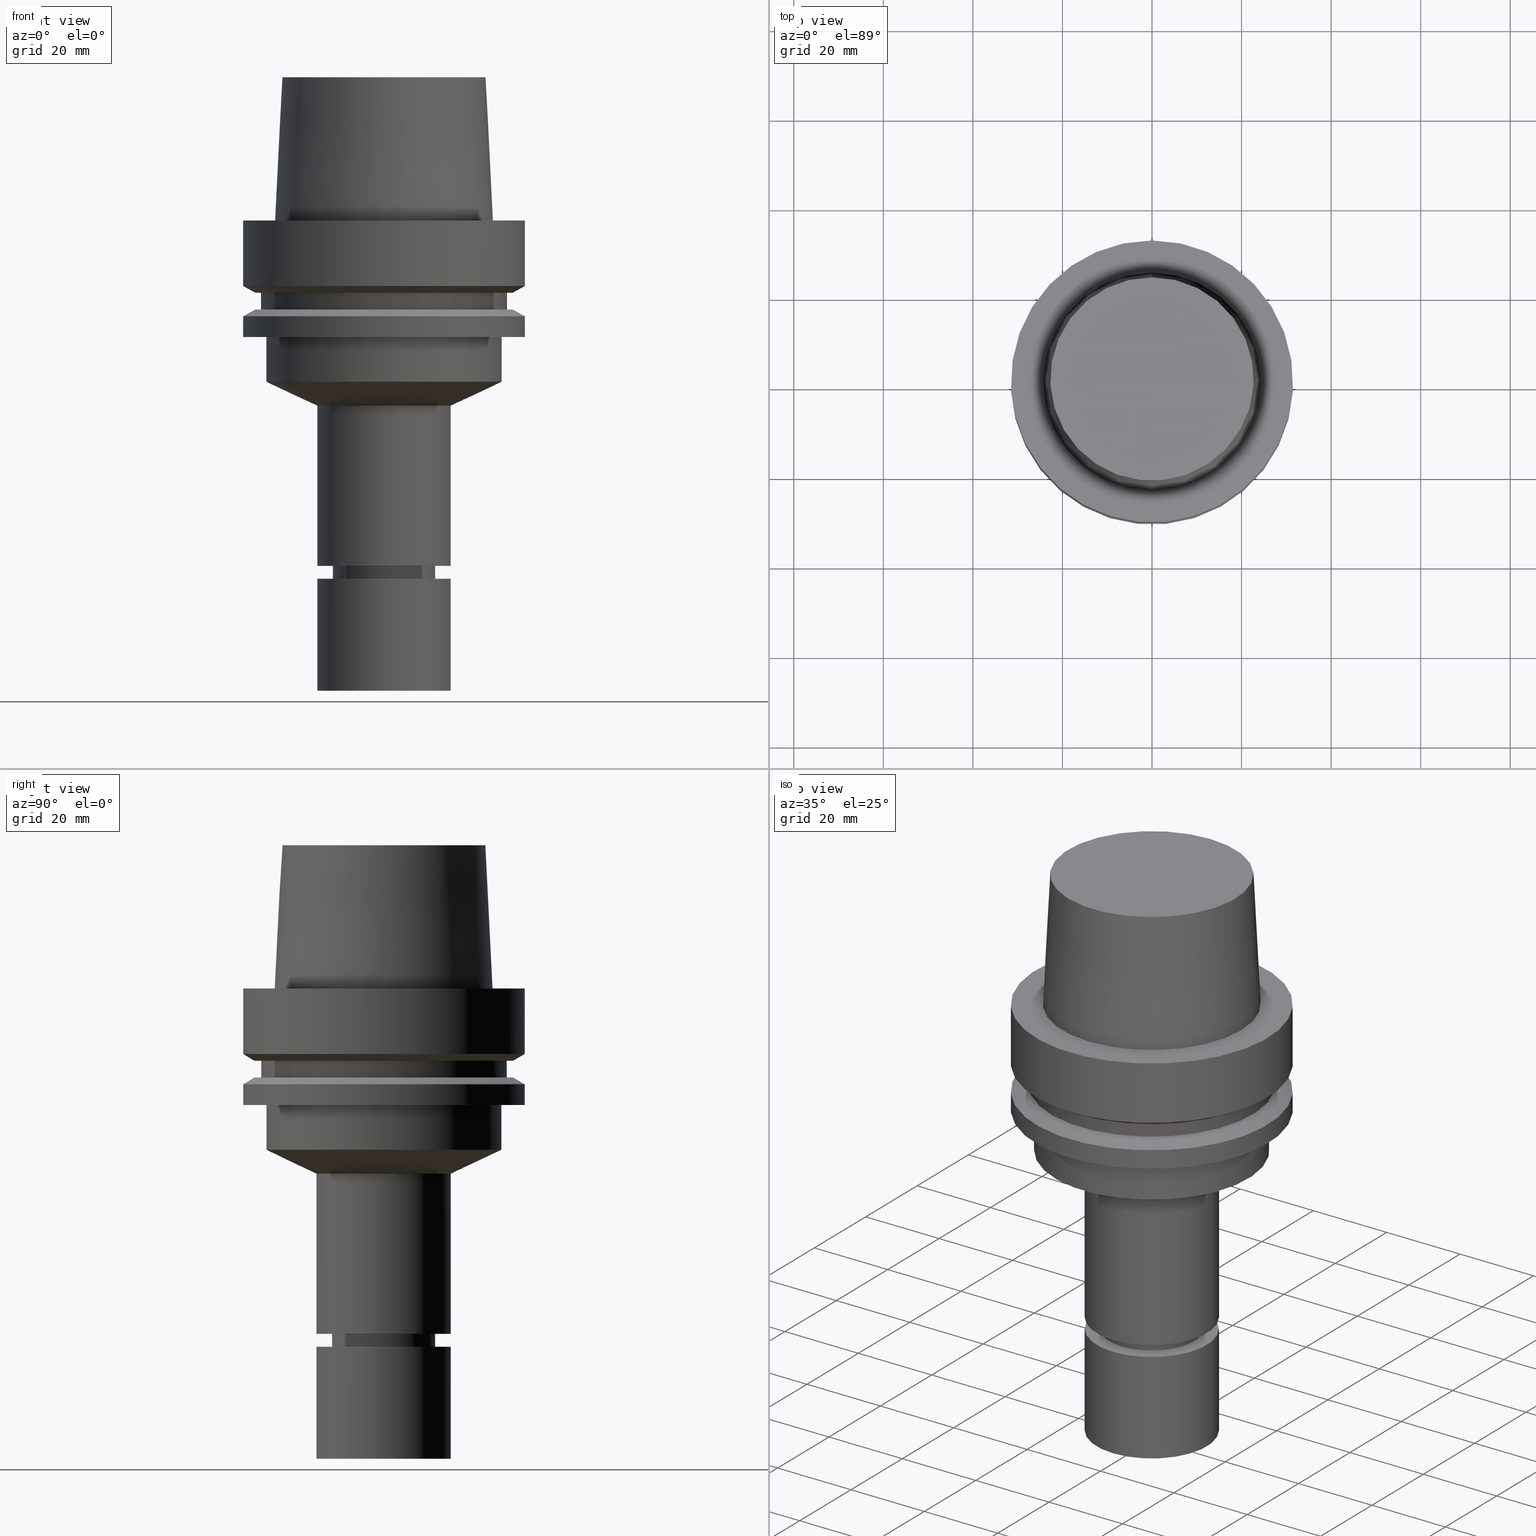
[diagram: canonical four-view strip — front | top / right | iso, engineering-drawing reading convention]
A machine part, canonical four-view strip (front | top / right | iso — engineering-drawing reading convention). The complete STEP part file that produces these views, byte-faithful:
ISO-10303-21;
HEADER;
FILE_DESCRIPTION((''),'1');
FILE_NAME('U:/Translate/02_3D_Field-HP\X2\FF71FF6FFF8CFF9F5916\X0\2013/02_Step_Field-HP\X2\FF71FF6FFF8CFF9F5916\X0\2013/HSK-A63-MEGAER16-105NL.stp','2016-06-21T23:56:23',(''),(''),'Spatial Interop R21 SP3','Kubotek KeyCreator 2011 V10.0.2 (22737)',' ');
FILE_SCHEMA(('automotive_design'));
ENDSEC;
DATA;
#1=MECHANICAL_DESIGN_GEOMETRIC_PRESENTATION_REPRESENTATION(' ',(#14,#15,#16,#17,#18,#19,#20,#21,#22,#23,#24,#25,#26,#27,#28,#29,#30,#31,#32,#33,#34,#35,#36,#37,#38,#39,#40,#41,#42,#43,#44,#45,#46,#47,#48,#49,#50,#51,#52,#53,#54,#55,#56,#57,#58,#59),#10);
#2=PRODUCT_DEFINITION_CONTEXT('',#60,'design');
#3=APPLICATION_PROTOCOL_DEFINITION('INTERNATIONAL STANDARD','automotive_design',1994,#60);
#4=PRODUCT_CATEGORY_RELATIONSHIP('NONE','NONE',#61,#62);
#5=SHAPE_DEFINITION_REPRESENTATION(#63,#64);
#6=PRODUCT_DEFINITION_CONTEXT('',#65,'design');
#7=APPLICATION_PROTOCOL_DEFINITION('INTERNATIONAL STANDARD','automotive_design',1994,#65);
#8=PRODUCT_CATEGORY_RELATIONSHIP('NONE','NONE',#66,#67);
#9=SHAPE_DEFINITION_REPRESENTATION(#68,#69);
#10= (GEOMETRIC_REPRESENTATION_CONTEXT(3)GLOBAL_UNCERTAINTY_ASSIGNED_CONTEXT((#72))GLOBAL_UNIT_ASSIGNED_CONTEXT((#74,#75,#76))REPRESENTATION_CONTEXT('NONE','WORKSPACE'));
#14=STYLED_ITEM('',(#78),#79);
#15=STYLED_ITEM('',(#80,#81),#82);
#16=STYLED_ITEM('',(#83),#84);
#17=STYLED_ITEM('',(#85),#86);
#18=STYLED_ITEM('',(#87),#88);
#19=STYLED_ITEM('',(#89,#90),#91);
#20=STYLED_ITEM('',(#92,#93),#94);
#21=STYLED_ITEM('',(#95),#96);
#22=STYLED_ITEM('',(#97),#98);
#23=STYLED_ITEM('',(#99),#100);
#24=STYLED_ITEM('',(#101,#102),#103);
#25=STYLED_ITEM('',(#104,#105),#106);
#26=STYLED_ITEM('',(#107),#108);
#27=STYLED_ITEM('',(#109,#110),#111);
#28=STYLED_ITEM('',(#112,#113),#114);
#29=STYLED_ITEM('',(#115),#116);
#30=STYLED_ITEM('',(#117),#118);
#31=STYLED_ITEM('',(#119),#120);
#32=STYLED_ITEM('',(#121),#122);
#33=STYLED_ITEM('',(#123,#124),#125);
#34=STYLED_ITEM('',(#126,#127),#128);
#35=STYLED_ITEM('',(#129,#130),#131);
#36=STYLED_ITEM('',(#132,#133),#134);
#37=STYLED_ITEM('',(#135,#136),#137);
#38=STYLED_ITEM('',(#138),#139);
#39=STYLED_ITEM('',(#140,#141),#142);
#40=STYLED_ITEM('',(#143),#144);
#41=STYLED_ITEM('',(#145),#146);
#42=STYLED_ITEM('',(#147),#148);
#43=STYLED_ITEM('',(#149),#150);
#44=STYLED_ITEM('',(#151,#152),#153);
#45=STYLED_ITEM('',(#154,#155),#156);
#46=STYLED_ITEM('',(#157,#158),#159);
#47=STYLED_ITEM('',(#160),#161);
#48=STYLED_ITEM('',(#162,#163),#164);
#49=STYLED_ITEM('',(#165,#166),#167);
#50=STYLED_ITEM('',(#168),#169);
#51=STYLED_ITEM('',(#170,#171),#172);
#52=STYLED_ITEM('',(#173,#174),#175);
#53=STYLED_ITEM('',(#176),#177);
#54=STYLED_ITEM('',(#178),#179);
#55=STYLED_ITEM('',(#180,#181),#182);
#56=STYLED_ITEM('',(#183,#184),#185);
#57=STYLED_ITEM('',(#186,#187),#188);
#58=STYLED_ITEM('',(#189,#190),#191);
#59=STYLED_ITEM('',(#192,#193),#194);
#60=APPLICATION_CONTEXT(' ');
#61=PRODUCT_CATEGORY('part','NONE');
#62=PRODUCT_RELATED_PRODUCT_CATEGORY('detail',' ',(#195));
#63=PRODUCT_DEFINITION_SHAPE('NONE','NONE',#196);
#64=ADVANCED_BREP_SHAPE_REPRESENTATION('Unnamed[1]',(#111,#197),#10);
#65=APPLICATION_CONTEXT(' ');
#66=PRODUCT_CATEGORY('part','NONE');
#67=PRODUCT_RELATED_PRODUCT_CATEGORY('detail',' ',(#198));
#68=PRODUCT_DEFINITION_SHAPE('NONE','NONE',#199);
#69=ADVANCED_BREP_SHAPE_REPRESENTATION('Unnamed[1]',(#106,#200),#10);
#72=UNCERTAINTY_MEASURE_WITH_UNIT(LENGTH_MEASURE(1.0E-006),#74,'','');
#74= (CONVERSION_BASED_UNIT('MILLIMETRE',#203)LENGTH_UNIT()NAMED_UNIT(#206));
#75= (NAMED_UNIT(#208)PLANE_ANGLE_UNIT()SI_UNIT($,.RADIAN.));
#76= (NAMED_UNIT(#208)SOLID_ANGLE_UNIT()SI_UNIT($,.STERADIAN.));
#78=PRESENTATION_STYLE_ASSIGNMENT((#214));
#79=EDGE_CURVE('Unnamed[1]',#215,#215,#216,.T.);
#80=PRESENTATION_STYLE_ASSIGNMENT((#217));
#81=PRESENTATION_STYLE_ASSIGNMENT((#218));
#82=ADVANCED_FACE('Unnamed[1]',(#219,#220),#221,.T.);
#83=PRESENTATION_STYLE_ASSIGNMENT((#222));
#84=EDGE_CURVE('Unnamed[1]',#223,#223,#224,.T.);
#85=PRESENTATION_STYLE_ASSIGNMENT((#225));
#86=EDGE_CURVE('Unnamed[1]',#226,#226,#227,.T.);
#87=PRESENTATION_STYLE_ASSIGNMENT((#228));
#88=EDGE_CURVE('Unnamed[1]',#229,#229,#230,.T.);
#89=PRESENTATION_STYLE_ASSIGNMENT((#231));
#90=PRESENTATION_STYLE_ASSIGNMENT((#232));
#91=ADVANCED_FACE('Unnamed[1]',(#233,#234),#235,.T.);
#92=PRESENTATION_STYLE_ASSIGNMENT((#236));
#93=PRESENTATION_STYLE_ASSIGNMENT((#237));
#94=ADVANCED_FACE('Unnamed[1]',(#238,#239),#240,.T.);
#95=PRESENTATION_STYLE_ASSIGNMENT((#241));
#96=EDGE_CURVE('Unnamed[1]',#242,#242,#243,.T.);
#97=PRESENTATION_STYLE_ASSIGNMENT((#244));
#98=EDGE_CURVE('Unnamed[1]',#245,#245,#246,.T.);
#99=PRESENTATION_STYLE_ASSIGNMENT((#247));
#100=EDGE_CURVE('Unnamed[1]',#248,#248,#249,.T.);
#101=PRESENTATION_STYLE_ASSIGNMENT((#250));
#102=PRESENTATION_STYLE_ASSIGNMENT((#251));
#103=ADVANCED_FACE('Unnamed[1]',(#252),#253,.T.);
#104=PRESENTATION_STYLE_ASSIGNMENT((#254));
#105=PRESENTATION_STYLE_ASSIGNMENT((#255));
#106=MANIFOLD_SOLID_BREP('Unnamed[1]',#256);
#107=PRESENTATION_STYLE_ASSIGNMENT((#257));
#108=EDGE_CURVE('Unnamed[1]',#258,#258,#259,.T.);
#109=PRESENTATION_STYLE_ASSIGNMENT((#260));
#110=PRESENTATION_STYLE_ASSIGNMENT((#261));
#111=MANIFOLD_SOLID_BREP('Unnamed[1]',#262);
#112=PRESENTATION_STYLE_ASSIGNMENT((#263));
#113=PRESENTATION_STYLE_ASSIGNMENT((#264));
#114=ADVANCED_FACE('Unnamed[1]',(#265),#266,.T.);
#115=PRESENTATION_STYLE_ASSIGNMENT((#267));
#116=EDGE_CURVE('Unnamed[1]',#268,#268,#269,.T.);
#117=PRESENTATION_STYLE_ASSIGNMENT((#270));
#118=EDGE_CURVE('Unnamed[1]',#271,#271,#272,.T.);
#119=PRESENTATION_STYLE_ASSIGNMENT((#273));
#120=EDGE_CURVE('Unnamed[1]',#274,#274,#275,.T.);
#121=PRESENTATION_STYLE_ASSIGNMENT((#276));
#122=EDGE_CURVE('Unnamed[1]',#277,#277,#278,.T.);
#123=PRESENTATION_STYLE_ASSIGNMENT((#279));
#124=PRESENTATION_STYLE_ASSIGNMENT((#280));
#125=ADVANCED_FACE('Unnamed[1]',(#281,#282),#283,.T.);
#126=PRESENTATION_STYLE_ASSIGNMENT((#284));
#127=PRESENTATION_STYLE_ASSIGNMENT((#285));
#128=ADVANCED_FACE('Unnamed[1]',(#286,#287),#288,.T.);
#129=PRESENTATION_STYLE_ASSIGNMENT((#289));
#130=PRESENTATION_STYLE_ASSIGNMENT((#290));
#131=ADVANCED_FACE('Unnamed[1]',(#291,#292),#293,.T.);
#132=PRESENTATION_STYLE_ASSIGNMENT((#294));
#133=PRESENTATION_STYLE_ASSIGNMENT((#295));
#134=ADVANCED_FACE('Unnamed[1]',(#296),#297,.T.);
#135=PRESENTATION_STYLE_ASSIGNMENT((#298));
#136=PRESENTATION_STYLE_ASSIGNMENT((#299));
#137=ADVANCED_FACE('Unnamed[1]',(#300,#301),#302,.T.);
#138=PRESENTATION_STYLE_ASSIGNMENT((#303));
#139=EDGE_CURVE('Unnamed[1]',#304,#304,#305,.T.);
#140=PRESENTATION_STYLE_ASSIGNMENT((#306));
#141=PRESENTATION_STYLE_ASSIGNMENT((#307));
#142=ADVANCED_FACE('Unnamed[1]',(#308,#309),#310,.T.);
#143=PRESENTATION_STYLE_ASSIGNMENT((#311));
#144=EDGE_CURVE('Unnamed[1]',#312,#312,#313,.T.);
#145=PRESENTATION_STYLE_ASSIGNMENT((#314));
#146=EDGE_CURVE('Unnamed[1]',#315,#315,#316,.T.);
#147=PRESENTATION_STYLE_ASSIGNMENT((#317));
#148=EDGE_CURVE('Unnamed[1]',#318,#318,#319,.T.);
#149=PRESENTATION_STYLE_ASSIGNMENT((#320));
#150=EDGE_CURVE('Unnamed[1]',#321,#321,#322,.T.);
#151=PRESENTATION_STYLE_ASSIGNMENT((#323));
#152=PRESENTATION_STYLE_ASSIGNMENT((#324));
#153=ADVANCED_FACE('Unnamed[1]',(#325,#326),#327,.T.);
#154=PRESENTATION_STYLE_ASSIGNMENT((#328));
#155=PRESENTATION_STYLE_ASSIGNMENT((#329));
#156=ADVANCED_FACE('Unnamed[1]',(#330,#331),#332,.T.);
#157=PRESENTATION_STYLE_ASSIGNMENT((#333));
#158=PRESENTATION_STYLE_ASSIGNMENT((#334));
#159=ADVANCED_FACE('Unnamed[1]',(#335,#336),#337,.T.);
#160=PRESENTATION_STYLE_ASSIGNMENT((#338));
#161=EDGE_CURVE('Unnamed[1]',#339,#339,#340,.T.);
#162=PRESENTATION_STYLE_ASSIGNMENT((#341));
#163=PRESENTATION_STYLE_ASSIGNMENT((#342));
#164=ADVANCED_FACE('Unnamed[1]',(#343,#344),#345,.T.);
#165=PRESENTATION_STYLE_ASSIGNMENT((#346));
#166=PRESENTATION_STYLE_ASSIGNMENT((#347));
#167=ADVANCED_FACE('Unnamed[1]',(#348),#349,.T.);
#168=PRESENTATION_STYLE_ASSIGNMENT((#350));
#169=EDGE_CURVE('Unnamed[1]',#351,#351,#352,.T.);
#170=PRESENTATION_STYLE_ASSIGNMENT((#353));
#171=PRESENTATION_STYLE_ASSIGNMENT((#354));
#172=ADVANCED_FACE('Unnamed[1]',(#355,#356),#357,.T.);
#173=PRESENTATION_STYLE_ASSIGNMENT((#358));
#174=PRESENTATION_STYLE_ASSIGNMENT((#359));
#175=ADVANCED_FACE('Unnamed[1]',(#360,#361),#362,.T.);
#176=PRESENTATION_STYLE_ASSIGNMENT((#363));
#177=EDGE_CURVE('Unnamed[1]',#364,#364,#365,.T.);
#178=PRESENTATION_STYLE_ASSIGNMENT((#366));
#179=EDGE_CURVE('Unnamed[1]',#367,#367,#368,.T.);
#180=PRESENTATION_STYLE_ASSIGNMENT((#369));
#181=PRESENTATION_STYLE_ASSIGNMENT((#370));
#182=ADVANCED_FACE('Unnamed[1]',(#371,#372),#373,.T.);
#183=PRESENTATION_STYLE_ASSIGNMENT((#374));
#184=PRESENTATION_STYLE_ASSIGNMENT((#375));
#185=ADVANCED_FACE('Unnamed[1]',(#376,#377),#378,.T.);
#186=PRESENTATION_STYLE_ASSIGNMENT((#379));
#187=PRESENTATION_STYLE_ASSIGNMENT((#380));
#188=ADVANCED_FACE('Unnamed[1]',(#381,#382),#383,.T.);
#189=PRESENTATION_STYLE_ASSIGNMENT((#384));
#190=PRESENTATION_STYLE_ASSIGNMENT((#385));
#191=ADVANCED_FACE('Unnamed[1]',(#386,#387),#388,.T.);
#192=PRESENTATION_STYLE_ASSIGNMENT((#389));
#193=PRESENTATION_STYLE_ASSIGNMENT((#390));
#194=ADVANCED_FACE('Unnamed[1]',(#391,#392),#393,.T.);
#195=PRODUCT('Unnamed[1]','Unnamed[1]','PART-Unnamed[1]-DESC',(#394));
#196=PRODUCT_DEFINITION('NONE','NONE',#395,#2);
#197=AXIS2_PLACEMENT_3D('',#396,#397,#398);
#198=PRODUCT('Unnamed[1]','Unnamed[1]','PART-Unnamed[1]-DESC',(#399));
#199=PRODUCT_DEFINITION('NONE','NONE',#400,#6);
#200=AXIS2_PLACEMENT_3D('',#401,#402,#403);
#203=LENGTH_MEASURE_WITH_UNIT(LENGTH_MEASURE(1.0),#404);
#206=DIMENSIONAL_EXPONENTS(1.0,0.0,0.0,0.0,0.0,0.0,0.0);
#208=DIMENSIONAL_EXPONENTS(0.0,0.0,0.0,0.0,0.0,0.0,0.0);
#214=CURVE_STYLE('',#405,POSITIVE_LENGTH_MEASURE(1000.0),#406);
#215=VERTEX_POINT('',#407);
#216=CIRCLE('',#408,15.0);
#217=SURFACE_STYLE_USAGE(.BOTH.,#409);
#218=CURVE_STYLE('',#410,POSITIVE_LENGTH_MEASURE(1000.0),#411);
#219=FACE_BOUND('',#412,.T.);
#220=FACE_OUTER_BOUND('',#413,.T.);
#221=PLANE('',#414);
#222=CURVE_STYLE('',#415,POSITIVE_LENGTH_MEASURE(1000.0),#416);
#223=VERTEX_POINT('',#417);
#224=CIRCLE('',#418,26.3);
#225=CURVE_STYLE('',#419,POSITIVE_LENGTH_MEASURE(1000.0),#420);
#226=VERTEX_POINT('',#421);
#227=CIRCLE('',#422,11.4999999999907);
#228=CURVE_STYLE('',#423,POSITIVE_LENGTH_MEASURE(1000.0),#424);
#229=VERTEX_POINT('',#425);
#230=CIRCLE('',#426,24.315);
#231=SURFACE_STYLE_USAGE(.BOTH.,#427);
#232=CURVE_STYLE('',#428,POSITIVE_LENGTH_MEASURE(1000.0),#429);
#233=FACE_BOUND('',#430,.T.);
#234=FACE_BOUND('',#431,.T.);
#235=CONICAL_SURFACE('',#432,30.1987976320959,1.04719755119657);
#236=SURFACE_STYLE_USAGE(.BOTH.,#433);
#237=CURVE_STYLE('',#434,POSITIVE_LENGTH_MEASURE(1000.0),#435);
#238=FACE_BOUND('',#436,.T.);
#239=FACE_BOUND('',#437,.T.);
#240=CYLINDRICAL_SURFACE('',#438,11.0000000000001);
#241=CURVE_STYLE('',#439,POSITIVE_LENGTH_MEASURE(1000.0),#440);
#242=VERTEX_POINT('',#441);
#243=CIRCLE('',#442,10.9999999999999);
#244=CURVE_STYLE('',#443,POSITIVE_LENGTH_MEASURE(1000.0),#444);
#245=VERTEX_POINT('',#445);
#246=CIRCLE('',#446,28.8975952641919);
#247=CURVE_STYLE('',#447,POSITIVE_LENGTH_MEASURE(1000.0),#448);
#248=VERTEX_POINT('',#449);
#249=CIRCLE('',#450,22.715);
#250=SURFACE_STYLE_USAGE(.BOTH.,#451);
#251=CURVE_STYLE('',#452,POSITIVE_LENGTH_MEASURE(1000.0),#453);
#252=FACE_OUTER_BOUND('',#454,.T.);
#253=PLANE('',#455);
#254=SURFACE_STYLE_USAGE(.BOTH.,#456);
#255=CURVE_STYLE('',#457,POSITIVE_LENGTH_MEASURE(1000.0),#458);
#256=CLOSED_SHELL('',(#114,#103,#188));
#257=CURVE_STYLE('',#459,POSITIVE_LENGTH_MEASURE(1000.0),#460);
#258=VERTEX_POINT('',#461);
#259=CIRCLE('',#462,28.8975952641919);
#260=SURFACE_STYLE_USAGE(.BOTH.,#463);
#261=CURVE_STYLE('',#464,POSITIVE_LENGTH_MEASURE(1000.0),#465);
#262=CLOSED_SHELL('',(#167,#194,#94,#125,#142,#156,#153,#128,#159,#172,#137,#91,#164,#185,#131,#191,#182,#82,#175,#134));
#263=SURFACE_STYLE_USAGE(.BOTH.,#466);
#264=CURVE_STYLE('',#467,POSITIVE_LENGTH_MEASURE(1000.0),#468);
#265=FACE_OUTER_BOUND('',#469,.T.);
#266=PLANE('',#470);
#267=CURVE_STYLE('',#471,POSITIVE_LENGTH_MEASURE(1000.0),#472);
#268=VERTEX_POINT('',#473);
#269=CIRCLE('',#474,9.89999999999962);
#270=CURVE_STYLE('',#475,POSITIVE_LENGTH_MEASURE(1000.0),#476);
#271=VERTEX_POINT('',#477);
#272=CIRCLE('',#478,31.4999999999998);
#273=CURVE_STYLE('',#479,POSITIVE_LENGTH_MEASURE(1000.0),#480);
#274=VERTEX_POINT('',#481);
#275=CIRCLE('',#482,27.5);
#276=CURVE_STYLE('',#483,POSITIVE_LENGTH_MEASURE(1000.0),#484);
#277=VERTEX_POINT('',#485);
#278=CIRCLE('',#486,31.5);
#279=SURFACE_STYLE_USAGE(.BOTH.,#487);
#280=CURVE_STYLE('',#488,POSITIVE_LENGTH_MEASURE(1000.0),#489);
#281=FACE_BOUND('',#490,.T.);
#282=FACE_BOUND('',#491,.T.);
#283=CONICAL_SURFACE('',#492,11.250000000001,0.766162649701775);
#284=SURFACE_STYLE_USAGE(.BOTH.,#493);
#285=CURVE_STYLE('',#494,POSITIVE_LENGTH_MEASURE(1000.0),#495);
#286=FACE_BOUND('',#496,.T.);
#287=FACE_BOUND('',#497,.T.);
#288=CONICAL_SURFACE('',#498,20.65,1.13007312058876);
#289=SURFACE_STYLE_USAGE(.BOTH.,#499);
#290=CURVE_STYLE('',#500,POSITIVE_LENGTH_MEASURE(1000.0),#501);
#291=FACE_OUTER_BOUND('',#502,.T.);
#292=FACE_BOUND('',#503,.T.);
#293=PLANE('',#504);
#294=SURFACE_STYLE_USAGE(.BOTH.,#505);
#295=CURVE_STYLE('',#506,POSITIVE_LENGTH_MEASURE(1000.0),#507);
#296=FACE_OUTER_BOUND('',#508,.T.);
#297=PLANE('',#509);
#298=SURFACE_STYLE_USAGE(.BOTH.,#510);
#299=CURVE_STYLE('',#511,POSITIVE_LENGTH_MEASURE(1000.0),#512);
#300=FACE_BOUND('',#513,.T.);
#301=FACE_BOUND('',#514,.T.);
#302=CYLINDRICAL_SURFACE('',#515,31.4999999999999);
#303=CURVE_STYLE('',#516,POSITIVE_LENGTH_MEASURE(1000.0),#517);
#304=VERTEX_POINT('',#518);
#305=CIRCLE('',#519,15.0000000000001);
#306=SURFACE_STYLE_USAGE(.BOTH.,#520);
#307=CURVE_STYLE('',#521,POSITIVE_LENGTH_MEASURE(1000.0),#522);
#308=FACE_BOUND('',#523,.T.);
#309=FACE_BOUND('',#524,.T.);
#310=CYLINDRICAL_SURFACE('',#525,11.4999999999964);
#311=CURVE_STYLE('',#526,POSITIVE_LENGTH_MEASURE(1000.0),#527);
#312=VERTEX_POINT('',#528);
#313=CIRCLE('',#529,11.0000000000003);
#314=CURVE_STYLE('',#530,POSITIVE_LENGTH_MEASURE(1000.0),#531);
#315=VERTEX_POINT('',#532);
#316=CIRCLE('',#533,15.0);
#317=CURVE_STYLE('',#534,POSITIVE_LENGTH_MEASURE(1000.0),#535);
#318=VERTEX_POINT('',#536);
#319=CIRCLE('',#537,26.3);
#320=CURVE_STYLE('',#538,POSITIVE_LENGTH_MEASURE(1000.0),#539);
#321=VERTEX_POINT('',#540);
#322=CIRCLE('',#541,31.5000000000001);
#323=SURFACE_STYLE_USAGE(.BOTH.,#542);
#324=CURVE_STYLE('',#543,POSITIVE_LENGTH_MEASURE(1000.0),#544);
#325=FACE_BOUND('',#545,.T.);
#326=FACE_BOUND('',#546,.T.);
#327=CYLINDRICAL_SURFACE('',#547,15.0);
#328=SURFACE_STYLE_USAGE(.BOTH.,#548);
#329=CURVE_STYLE('',#549,POSITIVE_LENGTH_MEASURE(1000.0),#550);
#330=FACE_OUTER_BOUND('',#551,.T.);
#331=FACE_BOUND('',#552,.T.);
#332=PLANE('',#553);
#333=SURFACE_STYLE_USAGE(.BOTH.,#554);
#334=CURVE_STYLE('',#555,POSITIVE_LENGTH_MEASURE(1000.0),#556);
#335=FACE_BOUND('',#557,.T.);
#336=FACE_BOUND('',#558,.T.);
#337=CYLINDRICAL_SURFACE('',#559,26.3);
#338=CURVE_STYLE('',#560,POSITIVE_LENGTH_MEASURE(1000.0),#561);
#339=VERTEX_POINT('',#562);
#340=CIRCLE('',#563,11.5000000000021);
#341=SURFACE_STYLE_USAGE(.BOTH.,#564);
#342=CURVE_STYLE('',#565,POSITIVE_LENGTH_MEASURE(1000.0),#566);
#343=FACE_BOUND('',#567,.T.);
#344=FACE_OUTER_BOUND('',#568,.T.);
#345=PLANE('',#569);
#346=SURFACE_STYLE_USAGE(.BOTH.,#570);
#347=CURVE_STYLE('',#571,POSITIVE_LENGTH_MEASURE(1000.0),#572);
#348=FACE_OUTER_BOUND('',#573,.T.);
#349=PLANE('',#574);
#350=CURVE_STYLE('',#575,POSITIVE_LENGTH_MEASURE(1000.0),#576);
#351=VERTEX_POINT('',#577);
#352=CIRCLE('',#578,27.4999999999989);
#353=SURFACE_STYLE_USAGE(.BOTH.,#579);
#354=CURVE_STYLE('',#580,POSITIVE_LENGTH_MEASURE(1000.0),#581);
#355=FACE_OUTER_BOUND('',#582,.T.);
#356=FACE_BOUND('',#583,.T.);
#357=PLANE('',#584);
#358=SURFACE_STYLE_USAGE(.BOTH.,#585);
#359=CURVE_STYLE('',#586,POSITIVE_LENGTH_MEASURE(1000.0),#587);
#360=FACE_BOUND('',#588,.T.);
#361=FACE_BOUND('',#589,.T.);
#362=CONICAL_SURFACE('',#590,23.515,0.0499583957219433);
#363=CURVE_STYLE('',#591,POSITIVE_LENGTH_MEASURE(1000.0),#592);
#364=VERTEX_POINT('',#593);
#365=CIRCLE('',#594,31.5);
#366=CURVE_STYLE('',#595,POSITIVE_LENGTH_MEASURE(1000.0),#596);
#367=VERTEX_POINT('',#597);
#368=CIRCLE('',#598,15.0);
#369=SURFACE_STYLE_USAGE(.BOTH.,#599);
#370=CURVE_STYLE('',#600,POSITIVE_LENGTH_MEASURE(1000.0),#601);
#371=FACE_BOUND('',#602,.T.);
#372=FACE_BOUND('',#603,.T.);
#373=CYLINDRICAL_SURFACE('',#604,31.5);
#374=SURFACE_STYLE_USAGE(.BOTH.,#605);
#375=CURVE_STYLE('',#606,POSITIVE_LENGTH_MEASURE(1000.0),#607);
#376=FACE_BOUND('',#608,.T.);
#377=FACE_BOUND('',#609,.T.);
#378=CYLINDRICAL_SURFACE('',#610,27.4999999999994);
#379=SURFACE_STYLE_USAGE(.BOTH.,#611);
#380=CURVE_STYLE('',#612,POSITIVE_LENGTH_MEASURE(1000.0),#613);
#381=FACE_BOUND('',#614,.T.);
#382=FACE_BOUND('',#615,.T.);
#383=CYLINDRICAL_SURFACE('',#616,15.0);
#384=SURFACE_STYLE_USAGE(.BOTH.,#617);
#385=CURVE_STYLE('',#618,POSITIVE_LENGTH_MEASURE(1000.0),#619);
#386=FACE_BOUND('',#620,.T.);
#387=FACE_BOUND('',#621,.T.);
#388=CONICAL_SURFACE('',#622,30.1987976320959,1.04719755119657);
#389=SURFACE_STYLE_USAGE(.BOTH.,#623);
#390=CURVE_STYLE('',#624,POSITIVE_LENGTH_MEASURE(1000.0),#625);
#391=FACE_BOUND('',#626,.T.);
#392=FACE_BOUND('',#627,.T.);
#393=CONICAL_SURFACE('',#628,10.4499999999999,0.523598775598224);
#394=PRODUCT_CONTEXT('',#60,'mechanical');
#395=PRODUCT_DEFINITION_FORMATION_WITH_SPECIFIED_SOURCE(' ','NONE',#195,.NOT_KNOWN.);
#396=CARTESIAN_POINT('',(0.0,0.0,0.0));
#397=DIRECTION('',(0.0,0.0,1.0));
#398=DIRECTION('',(1.0,0.0,0.0));
#399=PRODUCT_CONTEXT('',#65,'mechanical');
#400=PRODUCT_DEFINITION_FORMATION_WITH_SPECIFIED_SOURCE(' ','NONE',#198,.NOT_KNOWN.);
#401=CARTESIAN_POINT('',(0.0,0.0,0.0));
#402=DIRECTION('',(0.0,0.0,1.0));
#403=DIRECTION('',(1.0,0.0,0.0));
#404= (NAMED_UNIT(#206)LENGTH_UNIT()SI_UNIT(.MILLI.,.METRE.));
#405=DRAUGHTING_PRE_DEFINED_CURVE_FONT('continuous');
#406=COLOUR_RGB('',0.0,1.0,0.0);
#407=CARTESIAN_POINT('',(4.72101341071301E-015,15.0,-77.0999999999993));
#408=AXIS2_PLACEMENT_3D('',#630,#631,#632);
#409=SURFACE_SIDE_STYLE('',(#633));
#410=DRAUGHTING_PRE_DEFINED_CURVE_FONT('continuous');
#411=COLOUR_RGB('',0.0,1.0,0.0);
#412=EDGE_LOOP('',(#634));
#413=EDGE_LOOP('',(#635));
#414=AXIS2_PLACEMENT_3D('',#636,#637,#638);
#415=DRAUGHTING_PRE_DEFINED_CURVE_FONT('continuous');
#416=COLOUR_RGB('',0.0,1.0,0.0);
#417=CARTESIAN_POINT('',(1.59204083889154E-015,26.3,-25.9999999999997));
#418=AXIS2_PLACEMENT_3D('',#639,#640,#641);
#419=DRAUGHTING_PRE_DEFINED_CURVE_FONT('continuous');
#420=COLOUR_RGB('',0.0,1.0,0.0);
#421=CARTESIAN_POINT('',(4.72101341071305E-015,11.4999999999907,-77.1000000000001));
#422=AXIS2_PLACEMENT_3D('',#642,#643,#644);
#423=DRAUGHTING_PRE_DEFINED_CURVE_FONT('continuous');
#424=COLOUR_RGB('',0.0,1.0,0.0);
#425=CARTESIAN_POINT('',(-2.99705514225764E-031,24.315,2.97772869212679E-015));
#426=AXIS2_PLACEMENT_3D('',#645,#646,#647);
#427=SURFACE_SIDE_STYLE('',(#648));
#428=DRAUGHTING_PRE_DEFINED_CURVE_FONT('continuous');
#429=COLOUR_RGB('',0.0,1.0,0.0);
#430=EDGE_LOOP('',(#649));
#431=EDGE_LOOP('',(#650));
#432=AXIS2_PLACEMENT_3D('',#651,#652,#653);
#433=SURFACE_SIDE_STYLE('',(#654));
#434=DRAUGHTING_PRE_DEFINED_CURVE_FONT('continuous');
#435=COLOUR_RGB('',0.0,1.0,0.0);
#436=EDGE_LOOP('',(#655));
#437=EDGE_LOOP('',(#656));
#438=AXIS2_PLACEMENT_3D('',#657,#658,#659);
#439=DRAUGHTING_PRE_DEFINED_CURVE_FONT('continuous');
#440=COLOUR_RGB('',0.0,1.0,0.0);
#441=CARTESIAN_POINT('',(5.10867168763577E-015,10.9999999999999,-83.4309401076723));
#442=AXIS2_PLACEMENT_3D('',#660,#661,#662);
#443=DRAUGHTING_PRE_DEFINED_CURVE_FONT('continuous');
#444=COLOUR_RGB('',0.0,1.0,0.0);
#445=CARTESIAN_POINT('',(1.21699275665268E-015,28.8975952641919,-19.875));
#446=AXIS2_PLACEMENT_3D('',#663,#664,#665);
#447=DRAUGHTING_PRE_DEFINED_CURVE_FONT('continuous');
#448=COLOUR_RGB('',0.0,1.0,0.0);
#449=CARTESIAN_POINT('',(-1.95943487863576E-015,22.715,32.0));
#450=AXIS2_PLACEMENT_3D('',#666,#667,#668);
#451=SURFACE_SIDE_STYLE('',(#669));
#452=DRAUGHTING_PRE_DEFINED_CURVE_FONT('continuous');
#453=COLOUR_RGB('',0.0,1.0,0.0);
#454=EDGE_LOOP('',(#670));
#455=AXIS2_PLACEMENT_3D('',#671,#672,#673);
#456=SURFACE_SIDE_STYLE('',(#674));
#457=DRAUGHTING_PRE_DEFINED_CURVE_FONT('continuous');
#458=COLOUR_RGB('',0.0,1.0,0.0);
#459=DRAUGHTING_PRE_DEFINED_CURVE_FONT('continuous');
#460=COLOUR_RGB('',0.0,1.0,0.0);
#461=CARTESIAN_POINT('',(9.87371481812551E-016,28.8975952641919,-16.125));
#462=AXIS2_PLACEMENT_3D('',#675,#676,#677);
#463=SURFACE_SIDE_STYLE('',(#678));
#464=DRAUGHTING_PRE_DEFINED_CURVE_FONT('continuous');
#465=COLOUR_RGB('',0.0,1.0,0.0);
#466=SURFACE_SIDE_STYLE('',(#679));
#467=DRAUGHTING_PRE_DEFINED_CURVE_FONT('continuous');
#468=COLOUR_RGB('',0.0,1.0,0.0);
#469=EDGE_LOOP('',(#680));
#470=AXIS2_PLACEMENT_3D('',#681,#682,#683);
#471=DRAUGHTING_PRE_DEFINED_CURVE_FONT('continuous');
#472=COLOUR_RGB('',0.0,1.0,0.0);
#473=CARTESIAN_POINT('',(5.89055110389872E-015,9.89999999999963,-96.1999999999991));
#474=AXIS2_PLACEMENT_3D('',#684,#685,#686);
#475=DRAUGHTING_PRE_DEFINED_CURVE_FONT('continuous');
#476=COLOUR_RGB('',0.0,1.0,0.0);
#477=CARTESIAN_POINT('',(1.59204083889155E-015,31.4999999999998,-25.9999999999999));
#478=AXIS2_PLACEMENT_3D('',#687,#688,#689);
#479=DRAUGHTING_PRE_DEFINED_CURVE_FONT('continuous');
#480=COLOUR_RGB('',0.0,1.0,0.0);
#481=CARTESIAN_POINT('',(9.87371481812537E-016,27.5,-16.1249999999997));
#482=AXIS2_PLACEMENT_3D('',#690,#691,#692);
#483=DRAUGHTING_PRE_DEFINED_CURVE_FONT('continuous');
#484=COLOUR_RGB('',0.0,1.0,0.0);
#485=CARTESIAN_POINT('',(8.95369947681261E-016,31.5,-14.6225009252407));
#486=AXIS2_PLACEMENT_3D('',#693,#694,#695);
#487=SURFACE_SIDE_STYLE('',(#696));
#488=DRAUGHTING_PRE_DEFINED_CURVE_FONT('continuous');
#489=COLOUR_RGB('',0.0,1.0,0.0);
#490=EDGE_LOOP('',(#697));
#491=EDGE_LOOP('',(#698));
#492=AXIS2_PLACEMENT_3D('',#699,#700,#701);
#493=SURFACE_SIDE_STYLE('',(#702));
#494=DRAUGHTING_PRE_DEFINED_CURVE_FONT('continuous');
#495=COLOUR_RGB('',0.0,1.0,0.0);
#496=EDGE_LOOP('',(#703));
#497=EDGE_LOOP('',(#704));
#498=AXIS2_PLACEMENT_3D('',#705,#706,#707);
#499=SURFACE_SIDE_STYLE('',(#708));
#500=DRAUGHTING_PRE_DEFINED_CURVE_FONT('continuous');
#501=COLOUR_RGB('',0.0,1.0,0.0);
#502=EDGE_LOOP('',(#709));
#503=EDGE_LOOP('',(#710));
#504=AXIS2_PLACEMENT_3D('',#711,#712,#713);
#505=SURFACE_SIDE_STYLE('',(#714));
#506=DRAUGHTING_PRE_DEFINED_CURVE_FONT('continuous');
#507=COLOUR_RGB('',0.0,1.0,0.0);
#508=EDGE_LOOP('',(#715));
#509=AXIS2_PLACEMENT_3D('',#716,#717,#718);
#510=SURFACE_SIDE_STYLE('',(#719));
#511=DRAUGHTING_PRE_DEFINED_CURVE_FONT('continuous');
#512=COLOUR_RGB('',0.0,1.0,0.0);
#513=EDGE_LOOP('',(#720));
#514=EDGE_LOOP('',(#721));
#515=AXIS2_PLACEMENT_3D('',#722,#723,#724);
#516=DRAUGHTING_PRE_DEFINED_CURVE_FONT('continuous');
#517=COLOUR_RGB('',0.0,1.0,0.0);
#518=CARTESIAN_POINT('',(4.89858719658942E-015,15.0000000000001,-80.0000000000001));
#519=AXIS2_PLACEMENT_3D('',#725,#726,#727);
#520=SURFACE_SIDE_STYLE('',(#728));
#521=DRAUGHTING_PRE_DEFINED_CURVE_FONT('continuous');
#522=COLOUR_RGB('',0.0,1.0,0.0);
#523=EDGE_LOOP('',(#729));
#524=EDGE_LOOP('',(#730));
#525=AXIS2_PLACEMENT_3D('',#731,#732,#733);
#526=DRAUGHTING_PRE_DEFINED_CURVE_FONT('continuous');
#527=COLOUR_RGB('',0.0,1.0,0.0);
#528=CARTESIAN_POINT('',(5.77388782763889E-015,11.0000000000003,-94.2947441116719));
#529=AXIS2_PLACEMENT_3D('',#734,#735,#736);
#530=DRAUGHTING_PRE_DEFINED_CURVE_FONT('continuous');
#531=COLOUR_RGB('',0.0,1.0,0.0);
#532=CARTESIAN_POINT('',(2.53072078279922E-015,15.0,-41.32980684));
#533=AXIS2_PLACEMENT_3D('',#737,#738,#739);
#534=DRAUGHTING_PRE_DEFINED_CURVE_FONT('continuous');
#535=COLOUR_RGB('',0.0,1.0,0.0);
#536=CARTESIAN_POINT('',(2.20436423865517E-015,26.3,-36.0000000031019));
#537=AXIS2_PLACEMENT_3D('',#740,#741,#742);
#538=DRAUGHTING_PRE_DEFINED_CURVE_FONT('continuous');
#539=COLOUR_RGB('',0.0,1.0,0.0);
#540=CARTESIAN_POINT('',(-3.88267476788467E-031,31.5000000000001,3.85763741731417E-015));
#541=AXIS2_PLACEMENT_3D('',#743,#744,#745);
#542=SURFACE_SIDE_STYLE('',(#746));
#543=DRAUGHTING_PRE_DEFINED_CURVE_FONT('continuous');
#544=COLOUR_RGB('',0.0,1.0,0.0);
#545=EDGE_LOOP('',(#747));
#546=EDGE_LOOP('',(#748));
#547=AXIS2_PLACEMENT_3D('',#749,#750,#751);
#548=SURFACE_SIDE_STYLE('',(#752));
#549=DRAUGHTING_PRE_DEFINED_CURVE_FONT('continuous');
#550=COLOUR_RGB('',0.0,1.0,0.0);
#551=EDGE_LOOP('',(#753));
#552=EDGE_LOOP('',(#754));
#553=AXIS2_PLACEMENT_3D('',#755,#756,#757);
#554=SURFACE_SIDE_STYLE('',(#758));
#555=DRAUGHTING_PRE_DEFINED_CURVE_FONT('continuous');
#556=COLOUR_RGB('',0.0,1.0,0.0);
#557=EDGE_LOOP('',(#759));
#558=EDGE_LOOP('',(#760));
#559=AXIS2_PLACEMENT_3D('',#761,#762,#763);
#560=DRAUGHTING_PRE_DEFINED_CURVE_FONT('continuous');
#561=COLOUR_RGB('',0.0,1.0,0.0);
#562=CARTESIAN_POINT('',(5.07685443047439E-015,11.5000000000021,-82.9113248654077));
#563=AXIS2_PLACEMENT_3D('',#764,#765,#766);
#564=SURFACE_SIDE_STYLE('',(#767));
#565=DRAUGHTING_PRE_DEFINED_CURVE_FONT('continuous');
#566=COLOUR_RGB('',0.0,1.0,0.0);
#567=EDGE_LOOP('',(#768));
#568=EDGE_LOOP('',(#769));
#569=AXIS2_PLACEMENT_3D('',#770,#771,#772);
#570=SURFACE_SIDE_STYLE('',(#773));
#571=DRAUGHTING_PRE_DEFINED_CURVE_FONT('continuous');
#572=COLOUR_RGB('',0.0,1.0,0.0);
#573=EDGE_LOOP('',(#774));
#574=AXIS2_PLACEMENT_3D('',#775,#776,#777);
#575=DRAUGHTING_PRE_DEFINED_CURVE_FONT('continuous');
#576=COLOUR_RGB('',0.0,1.0,0.0);
#577=CARTESIAN_POINT('',(1.21699275665276E-015,27.4999999999989,-19.8750000000013));
#578=AXIS2_PLACEMENT_3D('',#778,#779,#780);
#579=SURFACE_SIDE_STYLE('',(#781));
#580=DRAUGHTING_PRE_DEFINED_CURVE_FONT('continuous');
#581=COLOUR_RGB('',0.0,1.0,0.0);
#582=EDGE_LOOP('',(#782));
#583=EDGE_LOOP('',(#783));
#584=AXIS2_PLACEMENT_3D('',#784,#785,#786);
#585=SURFACE_SIDE_STYLE('',(#787));
#586=DRAUGHTING_PRE_DEFINED_CURVE_FONT('continuous');
#587=COLOUR_RGB('',0.0,1.0,0.0);
#588=EDGE_LOOP('',(#788));
#589=EDGE_LOOP('',(#789));
#590=AXIS2_PLACEMENT_3D('',#790,#791,#792);
#591=DRAUGHTING_PRE_DEFINED_CURVE_FONT('continuous');
#592=COLOUR_RGB('',0.0,1.0,0.0);
#593=CARTESIAN_POINT('',(1.30899429078397E-015,31.5,-21.3774990747592));
#594=AXIS2_PLACEMENT_3D('',#793,#794,#795);
#595=DRAUGHTING_PRE_DEFINED_CURVE_FONT('continuous');
#596=COLOUR_RGB('',0.0,1.0,0.0);
#597=CARTESIAN_POINT('',(6.4293956955236E-015,15.0,-105.0));
#598=AXIS2_PLACEMENT_3D('',#796,#797,#798);
#599=SURFACE_SIDE_STYLE('',(#799));
#600=DRAUGHTING_PRE_DEFINED_CURVE_FONT('continuous');
#601=COLOUR_RGB('',0.0,1.0,0.0);
#602=EDGE_LOOP('',(#800));
#603=EDGE_LOOP('',(#801));
#604=AXIS2_PLACEMENT_3D('',#802,#803,#804);
#605=SURFACE_SIDE_STYLE('',(#805));
#606=DRAUGHTING_PRE_DEFINED_CURVE_FONT('continuous');
#607=COLOUR_RGB('',0.0,1.0,0.0);
#608=EDGE_LOOP('',(#806));
#609=EDGE_LOOP('',(#807));
#610=AXIS2_PLACEMENT_3D('',#808,#809,#810);
#611=SURFACE_SIDE_STYLE('',(#811));
#612=DRAUGHTING_PRE_DEFINED_CURVE_FONT('continuous');
#613=COLOUR_RGB('',0.0,1.0,0.0);
#614=EDGE_LOOP('',(#812));
#615=EDGE_LOOP('',(#813));
#616=AXIS2_PLACEMENT_3D('',#814,#815,#816);
#617=SURFACE_SIDE_STYLE('',(#817));
#618=DRAUGHTING_PRE_DEFINED_CURVE_FONT('continuous');
#619=COLOUR_RGB('',0.0,1.0,0.0);
#620=EDGE_LOOP('',(#818));
#621=EDGE_LOOP('',(#819));
#622=AXIS2_PLACEMENT_3D('',#820,#821,#822);
#623=SURFACE_SIDE_STYLE('',(#823));
#624=DRAUGHTING_PRE_DEFINED_CURVE_FONT('continuous');
#625=COLOUR_RGB('',0.0,1.0,0.0);
#626=EDGE_LOOP('',(#824));
#627=EDGE_LOOP('',(#825));
#628=AXIS2_PLACEMENT_3D('',#826,#827,#828);
#630=CARTESIAN_POINT('',(4.72101341071301E-015,9.44202682142601E-015,-77.0999999999993));
#631=DIRECTION('',(-6.12323399573677E-017,-1.22464679914735E-016,1.0));
#632=DIRECTION('',(-1.23259516440783E-032,1.0,1.22464679914735E-016));
#633=SURFACE_STYLE_FILL_AREA(#829);
#634=ORIENTED_EDGE('',*,*,#88,.F.);
#635=ORIENTED_EDGE('',*,*,#150,.T.);
#636=CARTESIAN_POINT('',(-3.43986495507116E-031,27.9075,3.41768305472048E-015));
#637=DIRECTION('',(-6.12323399573677E-017,-1.22464679914735E-016,1.0));
#638=DIRECTION('',(-1.23259516440783E-032,1.0,1.22464679914735E-016));
#639=CARTESIAN_POINT('',(1.59204083889154E-015,3.18408167778308E-015,-25.9999999999997));
#640=DIRECTION('',(-6.12323399573677E-017,-1.22464679914735E-016,1.0));
#641=DIRECTION('',(-1.23259516440783E-032,1.0,1.22464679914735E-016));
#642=CARTESIAN_POINT('',(4.72101341071305E-015,9.4420268214261E-015,-77.1000000000001));
#643=DIRECTION('',(-6.12323399573677E-017,-1.22464679914735E-016,1.0));
#644=DIRECTION('',(-1.23259516440783E-032,1.0,1.22464679914735E-016));
#645=CARTESIAN_POINT('',(0.0,0.0,0.0));
#646=DIRECTION('',(-6.12323399573677E-017,-1.22464679914735E-016,1.0));
#647=DIRECTION('',(-1.23259516440783E-032,1.0,1.22464679914735E-016));
#648=SURFACE_STYLE_FILL_AREA(#830);
#649=ORIENTED_EDGE('',*,*,#98,.F.);
#650=ORIENTED_EDGE('',*,*,#177,.T.);
#651=CARTESIAN_POINT('',(1.26299352371833E-015,2.52598704743665E-015,-20.6262495373796));
#652=DIRECTION('',(6.12323399573677E-017,1.22464679914735E-016,-1.0));
#653=DIRECTION('',(-1.23259516440783E-032,1.0,1.22464679914735E-016));
#654=SURFACE_STYLE_FILL_AREA(#831);
#655=ORIENTED_EDGE('',*,*,#96,.F.);
#656=ORIENTED_EDGE('',*,*,#144,.T.);
#657=CARTESIAN_POINT('',(5.44127975763733E-015,1.08825595152747E-014,-88.8628421096721));
#658=DIRECTION('',(-6.12323399573676E-017,-1.22464679914735E-016,1.0));
#659=DIRECTION('',(-1.23259516440783E-032,1.0,1.22464679914735E-016));
#660=CARTESIAN_POINT('',(5.10867168763577E-015,1.02173433752715E-014,-83.4309401076723));
#661=DIRECTION('',(-6.12323399573677E-017,-1.22464679914735E-016,1.0));
#662=DIRECTION('',(-1.23259516440783E-032,1.0,1.22464679914735E-016));
#663=CARTESIAN_POINT('',(1.21699275665268E-015,2.43398551330536E-015,-19.875));
#664=DIRECTION('',(-6.12323399573677E-017,-1.22464679914735E-016,1.0));
#665=DIRECTION('',(-1.23259516440783E-032,1.0,1.22464679914735E-016));
#666=CARTESIAN_POINT('',(-1.95943487863576E-015,-3.91886975727153E-015,32.0));
#667=DIRECTION('',(-6.12323399573676E-017,-1.22464679914735E-016,1.0));
#668=DIRECTION('',(-1.23259516440783E-032,1.0,1.22464679914735E-016));
#669=SURFACE_STYLE_FILL_AREA(#832);
#670=ORIENTED_EDGE('',*,*,#139,.F.);
#671=CARTESIAN_POINT('',(4.89858719658942E-015,7.50000000000004,-80.0000000000001));
#672=DIRECTION('',(-6.12323399573677E-017,-1.22464679914735E-016,1.0));
#673=DIRECTION('',(1.23259516440783E-032,-1.0,-1.22464679914735E-016));
#674=SURFACE_STYLE_FILL_AREA(#833);
#675=CARTESIAN_POINT('',(9.87371481812552E-016,1.9747429636251E-015,-16.125));
#676=DIRECTION('',(-6.12323399573677E-017,-1.22464679914735E-016,1.0));
#677=DIRECTION('',(-1.23259516440783E-032,1.0,1.22464679914735E-016));
#678=SURFACE_STYLE_FILL_AREA(#834);
#679=SURFACE_STYLE_FILL_AREA(#835);
#680=ORIENTED_EDGE('',*,*,#179,.T.);
#681=CARTESIAN_POINT('',(6.4293956955236E-015,7.50000000000001,-105.0));
#682=DIRECTION('',(6.12323399573677E-017,1.22464679914735E-016,-1.0));
#683=DIRECTION('',(-1.23259516440783E-032,1.0,1.22464679914735E-016));
#684=CARTESIAN_POINT('',(5.89055110389872E-015,1.17811022077974E-014,-96.1999999999991));
#685=DIRECTION('',(-6.12323399573677E-017,-1.22464679914735E-016,1.0));
#686=DIRECTION('',(-1.23259516440783E-032,1.0,1.22464679914735E-016));
#687=CARTESIAN_POINT('',(1.59204083889155E-015,3.1840816777831E-015,-25.9999999999999));
#688=DIRECTION('',(-6.12323399573676E-017,-1.22464679914735E-016,1.0));
#689=DIRECTION('',(-1.23259516440783E-032,1.0,1.22464679914735E-016));
#690=CARTESIAN_POINT('',(9.87371481812538E-016,1.97474296362508E-015,-16.1249999999997));
#691=DIRECTION('',(-6.12323399573677E-017,-1.22464679914735E-016,1.0));
#692=DIRECTION('',(-1.23259516440783E-032,1.0,1.22464679914735E-016));
#693=CARTESIAN_POINT('',(8.95369947681262E-016,1.79073989536252E-015,-14.6225009252407));
#694=DIRECTION('',(-6.12323399573677E-017,-1.22464679914735E-016,1.0));
#695=DIRECTION('',(-1.23259516440783E-032,1.0,1.22464679914735E-016));
#696=SURFACE_STYLE_FILL_AREA(#836);
#697=ORIENTED_EDGE('',*,*,#161,.F.);
#698=ORIENTED_EDGE('',*,*,#96,.T.);
#699=CARTESIAN_POINT('',(5.09276305905508E-015,1.01855261181102E-014,-83.17113248654));
#700=DIRECTION('',(-6.12323399573677E-017,-1.22464679914735E-016,1.0));
#701=DIRECTION('',(-1.23259516440783E-032,1.0,1.22464679914735E-016));
#702=SURFACE_STYLE_FILL_AREA(#837);
#703=ORIENTED_EDGE('',*,*,#148,.F.);
#704=ORIENTED_EDGE('',*,*,#146,.T.);
#705=CARTESIAN_POINT('',(2.3675425107272E-015,4.73508502145439E-015,-38.6649034215509));
#706=DIRECTION('',(-6.12323399573677E-017,-1.22464679914735E-016,1.0));
#707=DIRECTION('',(-1.23259516440783E-032,1.0,1.22464679914735E-016));
#708=SURFACE_STYLE_FILL_AREA(#838);
#709=ORIENTED_EDGE('',*,*,#108,.F.);
#710=ORIENTED_EDGE('',*,*,#120,.T.);
#711=CARTESIAN_POINT('',(9.87371481812544E-016,28.1987976320959,-16.1249999999999));
#712=DIRECTION('',(6.12323399573677E-017,-1.65108768595307E-013,-1.0));
#713=DIRECTION('',(-1.01051690958394E-029,-1.0,1.65108768595307E-013));
#714=SURFACE_STYLE_FILL_AREA(#839);
#715=ORIENTED_EDGE('',*,*,#100,.T.);
#716=CARTESIAN_POINT('',(-1.95943487863576E-015,11.3575,32.0));
#717=DIRECTION('',(-6.12323399573677E-017,9.72362339746437E-016,1.0));
#718=DIRECTION('',(5.47128686183263E-032,1.0,-9.72362339746437E-016));
#719=SURFACE_STYLE_FILL_AREA(#840);
#720=ORIENTED_EDGE('',*,*,#177,.F.);
#721=ORIENTED_EDGE('',*,*,#118,.T.);
#722=CARTESIAN_POINT('',(1.45051756483776E-015,2.90103512967552E-015,-23.6887495373796));
#723=DIRECTION('',(-6.12323399573677E-017,-1.22464679914735E-016,1.0));
#724=DIRECTION('',(-1.23259516440783E-032,1.0,1.22464679914735E-016));
#725=CARTESIAN_POINT('',(4.89858719658942E-015,9.79717439317883E-015,-80.0000000000001));
#726=DIRECTION('',(6.12323399573677E-017,1.22464679914735E-016,-1.0));
#727=DIRECTION('',(-1.23259516440783E-032,1.0,1.22464679914735E-016));
#728=SURFACE_STYLE_FILL_AREA(#841);
#729=ORIENTED_EDGE('',*,*,#86,.F.);
#730=ORIENTED_EDGE('',*,*,#161,.T.);
#731=CARTESIAN_POINT('',(4.89893392059372E-015,9.79786784118744E-015,-80.0056624327039));
#732=DIRECTION('',(-6.12323399573676E-017,-1.22464679914735E-016,1.0));
#733=DIRECTION('',(-1.23259516440783E-032,1.0,1.22464679914735E-016));
#734=CARTESIAN_POINT('',(5.77388782763889E-015,1.15477756552778E-014,-94.2947441116719));
#735=DIRECTION('',(-6.12323399573676E-017,-1.22464679914735E-016,1.0));
#736=DIRECTION('',(-1.23259516440783E-032,1.0,1.22464679914735E-016));
#737=CARTESIAN_POINT('',(2.53072078279922E-015,5.06144156559844E-015,-41.32980684));
#738=DIRECTION('',(-6.12323399573677E-017,-1.22464679914735E-016,1.0));
#739=DIRECTION('',(-1.23259516440783E-032,1.0,1.22464679914735E-016));
#740=CARTESIAN_POINT('',(2.20436423865517E-015,4.40872847731034E-015,-36.0000000031019));
#741=DIRECTION('',(-6.12323399573677E-017,-1.22464679914735E-016,1.0));
#742=DIRECTION('',(-1.23259516440783E-032,1.0,1.22464679914735E-016));
#743=CARTESIAN_POINT('',(0.0,0.0,0.0));
#744=DIRECTION('',(-6.12323399573677E-017,-1.22464679914735E-016,1.0));
#745=DIRECTION('',(-1.23259516440783E-032,1.0,1.22464679914735E-016));
#746=SURFACE_STYLE_FILL_AREA(#842);
#747=ORIENTED_EDGE('',*,*,#146,.F.);
#748=ORIENTED_EDGE('',*,*,#79,.T.);
#749=CARTESIAN_POINT('',(3.62586709675611E-015,7.25173419351222E-015,-59.2149034199997));
#750=DIRECTION('',(-6.12323399573677E-017,-1.22464679914735E-016,1.0));
#751=DIRECTION('',(-1.23259516440783E-032,1.0,1.22464679914735E-016));
#752=SURFACE_STYLE_FILL_AREA(#843);
#753=ORIENTED_EDGE('',*,*,#79,.F.);
#754=ORIENTED_EDGE('',*,*,#86,.T.);
#755=CARTESIAN_POINT('',(4.72101341071303E-015,13.2499999999954,-77.0999999999997));
#756=DIRECTION('',(6.12323399573677E-017,2.07194919100879E-013,-1.0));
#757=DIRECTION('',(1.26918568765551E-029,-1.0,-2.07194919100879E-013));
#758=SURFACE_STYLE_FILL_AREA(#844);
#759=ORIENTED_EDGE('',*,*,#84,.F.);
#760=ORIENTED_EDGE('',*,*,#148,.T.);
#761=CARTESIAN_POINT('',(1.89820253877336E-015,3.79640507754671E-015,-31.0000000015508));
#762=DIRECTION('',(-6.12323399573677E-017,-1.22464679914735E-016,1.0));
#763=DIRECTION('',(-1.23259516440783E-032,1.0,1.22464679914735E-016));
#764=CARTESIAN_POINT('',(5.07685443047439E-015,1.01537088609488E-014,-82.9113248654077));
#765=DIRECTION('',(-6.12323399573676E-017,-1.22464679914735E-016,1.0));
#766=DIRECTION('',(-1.23259516440783E-032,1.0,1.22464679914735E-016));
#767=SURFACE_STYLE_FILL_AREA(#845);
#768=ORIENTED_EDGE('',*,*,#169,.F.);
#769=ORIENTED_EDGE('',*,*,#98,.T.);
#770=CARTESIAN_POINT('',(1.21699275665272E-015,28.1987976320954,-19.8750000000006));
#771=DIRECTION('',(-6.12323399573677E-017,-9.58463617675421E-013,1.0));
#772=DIRECTION('',(-5.86937972270006E-029,1.0,9.58463617675421E-013));
#773=SURFACE_STYLE_FILL_AREA(#846);
#774=ORIENTED_EDGE('',*,*,#116,.F.);
#775=CARTESIAN_POINT('',(5.89055110389874E-015,4.94999999999982,-96.1999999999995));
#776=DIRECTION('',(6.12323399573677E-017,8.05070974123736E-014,-1.0));
#777=DIRECTION('',(4.93446511046614E-030,-1.0,-8.05070974123736E-014));
#778=CARTESIAN_POINT('',(1.21699275665276E-015,2.43398551330552E-015,-19.8750000000013));
#779=DIRECTION('',(-6.12323399573677E-017,-1.22464679914735E-016,1.0));
#780=DIRECTION('',(-1.23259516440783E-032,1.0,1.22464679914735E-016));
#781=SURFACE_STYLE_FILL_AREA(#847);
#782=ORIENTED_EDGE('',*,*,#118,.F.);
#783=ORIENTED_EDGE('',*,*,#84,.T.);
#784=CARTESIAN_POINT('',(1.59204083889155E-015,28.8999999999999,-25.9999999999998));
#785=DIRECTION('',(6.12323399573677E-017,-4.01871712910923E-014,-1.0));
#786=DIRECTION('',(-2.45592738169036E-030,-1.0,4.01871712910923E-014));
#787=SURFACE_STYLE_FILL_AREA(#848);
#788=ORIENTED_EDGE('',*,*,#100,.F.);
#789=ORIENTED_EDGE('',*,*,#88,.T.);
#790=CARTESIAN_POINT('',(-9.79717439317882E-016,-1.95943487863576E-015,16.0));
#791=DIRECTION('',(6.12323399573677E-017,1.22464679914735E-016,-1.0));
#792=DIRECTION('',(-1.23259516440783E-032,1.0,1.22464679914735E-016));
#793=CARTESIAN_POINT('',(1.30899429078397E-015,2.61798858156794E-015,-21.3774990747592));
#794=DIRECTION('',(-6.12323399573677E-017,-1.22464679914735E-016,1.0));
#795=DIRECTION('',(-1.23259516440783E-032,1.0,1.22464679914735E-016));
#796=CARTESIAN_POINT('',(6.4293956955236E-015,1.28587913910472E-014,-105.0));
#797=DIRECTION('',(6.12323399573677E-017,1.22464679914735E-016,-1.0));
#798=DIRECTION('',(-1.23259516440783E-032,1.0,1.22464679914735E-016));
#799=SURFACE_STYLE_FILL_AREA(#849);
#800=ORIENTED_EDGE('',*,*,#150,.F.);
#801=ORIENTED_EDGE('',*,*,#122,.T.);
#802=CARTESIAN_POINT('',(4.47684973840631E-016,8.95369947681262E-016,-7.31125046262035));
#803=DIRECTION('',(-6.12323399573677E-017,-1.22464679914735E-016,1.0));
#804=DIRECTION('',(-1.23259516440783E-032,1.0,1.22464679914735E-016));
#805=SURFACE_STYLE_FILL_AREA(#850);
#806=ORIENTED_EDGE('',*,*,#120,.F.);
#807=ORIENTED_EDGE('',*,*,#169,.T.);
#808=CARTESIAN_POINT('',(1.10218211923265E-015,2.2043642384653E-015,-18.0000000000005));
#809=DIRECTION('',(-6.12323399573677E-017,-1.22464679914735E-016,1.0));
#810=DIRECTION('',(-1.23259516440783E-032,1.0,1.22464679914735E-016));
#811=SURFACE_STYLE_FILL_AREA(#851);
#812=ORIENTED_EDGE('',*,*,#179,.F.);
#813=ORIENTED_EDGE('',*,*,#139,.T.);
#814=CARTESIAN_POINT('',(5.66399144605651E-015,1.1327982892113E-014,-92.5));
#815=DIRECTION('',(6.12323399573677E-017,1.22464679914735E-016,-1.0));
#816=DIRECTION('',(-1.23259516440783E-032,1.0,1.22464679914735E-016));
#817=SURFACE_STYLE_FILL_AREA(#852);
#818=ORIENTED_EDGE('',*,*,#122,.F.);
#819=ORIENTED_EDGE('',*,*,#108,.T.);
#820=CARTESIAN_POINT('',(9.41370714746907E-016,1.88274142949381E-015,-15.3737504626203));
#821=DIRECTION('',(-6.12323399573677E-017,-1.22464679914735E-016,1.0));
#822=DIRECTION('',(-1.23259516440783E-032,1.0,1.22464679914735E-016));
#823=SURFACE_STYLE_FILL_AREA(#853);
#824=ORIENTED_EDGE('',*,*,#144,.F.);
#825=ORIENTED_EDGE('',*,*,#116,.T.);
#826=CARTESIAN_POINT('',(5.8322194657688E-015,1.16644389315376E-014,-95.2473720558355));
#827=DIRECTION('',(-6.12323399573677E-017,-1.22464679914735E-016,1.0));
#828=DIRECTION('',(-1.23259516440783E-032,1.0,1.22464679914735E-016));
#829=FILL_AREA_STYLE('',(#854));
#830=FILL_AREA_STYLE('',(#855));
#831=FILL_AREA_STYLE('',(#856));
#832=FILL_AREA_STYLE('',(#857));
#833=FILL_AREA_STYLE('',(#858));
#834=FILL_AREA_STYLE('',(#859));
#835=FILL_AREA_STYLE('',(#860));
#836=FILL_AREA_STYLE('',(#861));
#837=FILL_AREA_STYLE('',(#862));
#838=FILL_AREA_STYLE('',(#863));
#839=FILL_AREA_STYLE('',(#864));
#840=FILL_AREA_STYLE('',(#865));
#841=FILL_AREA_STYLE('',(#866));
#842=FILL_AREA_STYLE('',(#867));
#843=FILL_AREA_STYLE('',(#868));
#844=FILL_AREA_STYLE('',(#869));
#845=FILL_AREA_STYLE('',(#870));
#846=FILL_AREA_STYLE('',(#871));
#847=FILL_AREA_STYLE('',(#872));
#848=FILL_AREA_STYLE('',(#873));
#849=FILL_AREA_STYLE('',(#874));
#850=FILL_AREA_STYLE('',(#875));
#851=FILL_AREA_STYLE('',(#876));
#852=FILL_AREA_STYLE('',(#877));
#853=FILL_AREA_STYLE('',(#878));
#854=FILL_AREA_STYLE_COLOUR('',#879);
#855=FILL_AREA_STYLE_COLOUR('',#880);
#856=FILL_AREA_STYLE_COLOUR('',#881);
#857=FILL_AREA_STYLE_COLOUR('',#882);
#858=FILL_AREA_STYLE_COLOUR('',#883);
#859=FILL_AREA_STYLE_COLOUR('',#884);
#860=FILL_AREA_STYLE_COLOUR('',#885);
#861=FILL_AREA_STYLE_COLOUR('',#886);
#862=FILL_AREA_STYLE_COLOUR('',#887);
#863=FILL_AREA_STYLE_COLOUR('',#888);
#864=FILL_AREA_STYLE_COLOUR('',#889);
#865=FILL_AREA_STYLE_COLOUR('',#890);
#866=FILL_AREA_STYLE_COLOUR('',#891);
#867=FILL_AREA_STYLE_COLOUR('',#892);
#868=FILL_AREA_STYLE_COLOUR('',#893);
#869=FILL_AREA_STYLE_COLOUR('',#894);
#870=FILL_AREA_STYLE_COLOUR('',#895);
#871=FILL_AREA_STYLE_COLOUR('',#896);
#872=FILL_AREA_STYLE_COLOUR('',#897);
#873=FILL_AREA_STYLE_COLOUR('',#898);
#874=FILL_AREA_STYLE_COLOUR('',#899);
#875=FILL_AREA_STYLE_COLOUR('',#900);
#876=FILL_AREA_STYLE_COLOUR('',#901);
#877=FILL_AREA_STYLE_COLOUR('',#902);
#878=FILL_AREA_STYLE_COLOUR('',#903);
#879=COLOUR_RGB('',0.0,1.0,0.0);
#880=COLOUR_RGB('',0.0,1.0,0.0);
#881=COLOUR_RGB('',0.0,1.0,0.0);
#882=COLOUR_RGB('',0.0,1.0,0.0);
#883=COLOUR_RGB('',0.0,1.0,0.0);
#884=COLOUR_RGB('',0.0,1.0,0.0);
#885=COLOUR_RGB('',0.0,1.0,0.0);
#886=COLOUR_RGB('',0.0,1.0,0.0);
#887=COLOUR_RGB('',0.0,1.0,0.0);
#888=COLOUR_RGB('',0.0,1.0,0.0);
#889=COLOUR_RGB('',0.0,1.0,0.0);
#890=COLOUR_RGB('',0.0,1.0,0.0);
#891=COLOUR_RGB('',0.0,1.0,0.0);
#892=COLOUR_RGB('',0.0,1.0,0.0);
#893=COLOUR_RGB('',0.0,1.0,0.0);
#894=COLOUR_RGB('',0.0,1.0,0.0);
#895=COLOUR_RGB('',0.0,1.0,0.0);
#896=COLOUR_RGB('',0.0,1.0,0.0);
#897=COLOUR_RGB('',0.0,1.0,0.0);
#898=COLOUR_RGB('',0.0,1.0,0.0);
#899=COLOUR_RGB('',0.0,1.0,0.0);
#900=COLOUR_RGB('',0.0,1.0,0.0);
#901=COLOUR_RGB('',0.0,1.0,0.0);
#902=COLOUR_RGB('',0.0,1.0,0.0);
#903=COLOUR_RGB('',0.0,1.0,0.0);
ENDSEC;
END-ISO-10303-21;
